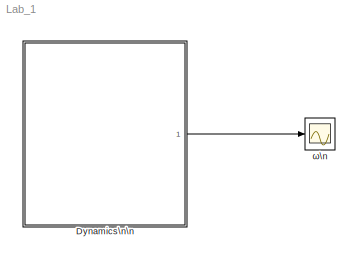
MODEL Lab_1
KIND model
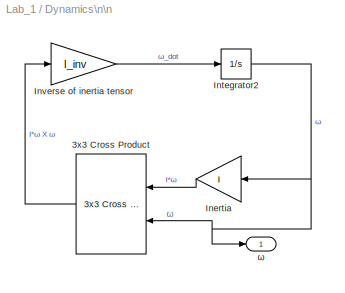
BLOCK [SubSystem] Dynamics\n\n
  Ports = [0, 1]
  RequestExecContextInheritance = off
  SID = 53
BLOCK [Reference] Dynamics\n\n/3x3 Cross Product  REF=sharedutil/3x3 Cross Product
  Ports = [2, 1]
  SID = 74
  SourceBlock = sharedutil/3x3 Cross Product
  SourceProductBaseCode = AE
  SourceProductName = Aerospace Blockset
  SourceType = CrossProduct
  aMode = aMode
BLOCK [Gain] Dynamics\n\n/Inertia
  Gain = I
  Multiplication = Matrix(K*u)
  OutDataTypeStr = Inherit: Inherit via internal rule
  ParamDataTypeStr = Inherit: Inherit via internal rule
  SID = 75
  SaturateOnIntegerOverflow = off
BLOCK [Integrator] Dynamics\n\n/Integrator2
  InitialCondition = w_0
  Ports = [1, 1]
  SID = 76
BLOCK [Gain] Dynamics\n\n/Inverse of inertia tensor
  Gain = I_inv
  Multiplication = Matrix(K*u)
  OutDataTypeStr = Inherit: Inherit via internal rule
  ParamDataTypeStr = Inherit: Inherit via internal rule
  SID = 77
  SaturateOnIntegerOverflow = off
BLOCK [Outport] Dynamics\n\n/ω
  IconDisplay = Port number
  SID = 78
BLOCK [Scope] ω\n
  Floating = off
  NumInputPorts = 1
  Ports = [1]
  SID = 65
  ScopeSpecificationString = Simulink.scopes.TimeScopeBlockCfg('CurrentConfiguration', extmgr.ConfigurationSet(extmgr.Configuration('Core','General UI',true),extmgr.Configuration('Core','Source UI',true),extmgr.Configuration('Sources','WiredSimulink',true),extmgr.Configuration('Visuals','Time Domain',true,'SerializedDisplays',{struct('MinYLimReal','0.41893','MaxYLimReal','0.53037','YLabelReal','','MinYLimMag','0.41893','MaxYL...<+1379ch>
ANNOTATION Dynamics\n\n: ω
LINE Dynamics\n\n/3x3 Cross Product:1 -> Dynamics\n\n/Inverse of inertia tensor:1
LINE Dynamics\n\n/Inertia:1 -> Dynamics\n\n/3x3 Cross Product:1
NET Dynamics\n\n/Integrator2:1 -> Dynamics\n\n/3x3 Cross Product:2, Dynamics\n\n/Inertia:1, Dynamics\n\n/ω:1
LINE Dynamics\n\n/Inverse of inertia tensor:1 -> Dynamics\n\n/Integrator2:1
LINE Dynamics\n\n:1 -> ω\n:1
note: NET lines group one-source signal fan-out (src -> all destinations, sorted); 1:1 wires keep LINE
